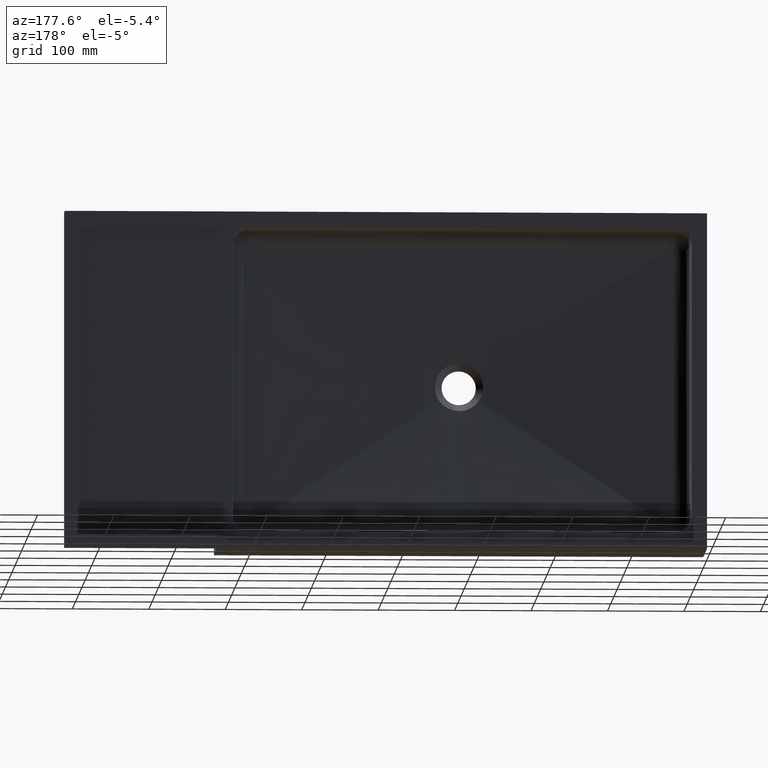
[diagram: clean part render]
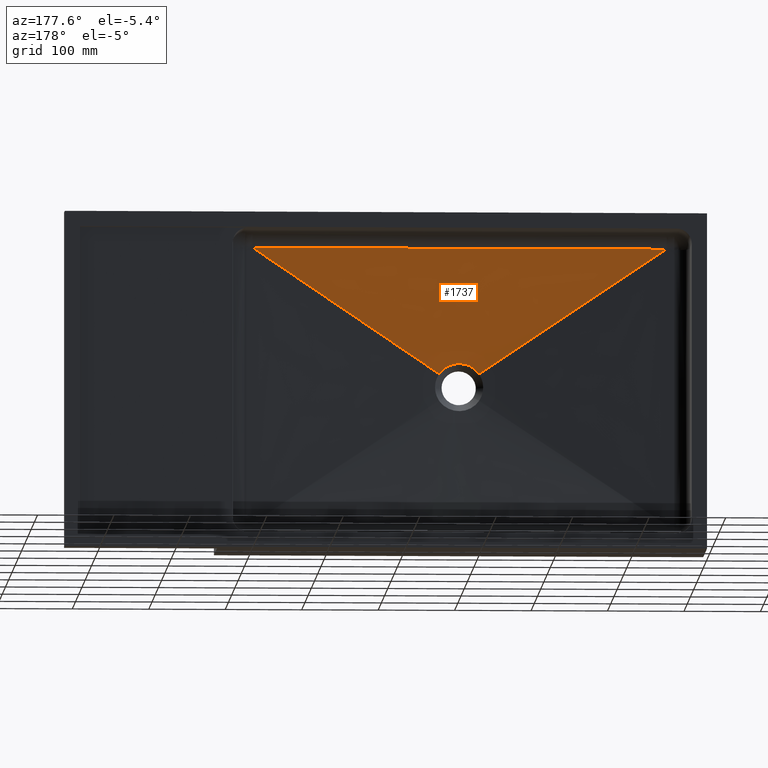
[diagram: same view with one face highlighted and labeled with its STEP entity id]
A machine part, auxiliary view. The second image highlights one B-rep face of the part: STEP entity #1737.
In plain terms, the highlighted face is a freeform B-spline surface patch.
Its self-contained STEP definition (entity closure, byte-faithful):
#9 = CARTESIAN_POINT ( 'NONE',  ( 298.4992200801833633, 17.43442117973044247, -197.0236428055716544 ) ) ;
#20 = CARTESIAN_POINT ( 'NONE',  ( 243.0804523647389317, 19.73031160035058207, -167.9859212480016311 ) ) ;
#46 = CARTESIAN_POINT ( 'NONE',  ( 386.7406578605121581, 19.25576967337587675, -174.8146416493360960 ) ) ;
#52 = CARTESIAN_POINT ( 'NONE',  ( 346.1628821202430686, 17.35106888223705113, -202.3324392136752294 ) ) ;
#62 = CARTESIAN_POINT ( 'NONE',  ( 341.1812567268683551, 17.43962421266724405, -196.7421294850480820 ) ) ;
#68 = EDGE_CURVE ( 'NONE', #1306, #1025, #1317, .T. ) ;
#74 = CARTESIAN_POINT ( 'NONE',  ( 337.5724397027032637, 17.49686281999438719, -193.9833549987497179 ) ) ;
#128 = CARTESIAN_POINT ( 'NONE',  ( 328.2705115068167743, 17.60572995430017329, -189.8475019211890924 ) ) ;
#133 = CARTESIAN_POINT ( 'NONE',  ( 310.3855416823307110, 17.00000000000000355, -199.5715957894001065 ) ) ;
#141 = CARTESIAN_POINT ( 'NONE',  ( 317.5417505736327826, 17.63655936837771065, -188.8579844265778434 ) ) ;
#146 = CARTESIAN_POINT ( 'NONE',  ( 419.9999999999981810, 30.00000000000002842, -19.99999999999999645 ) ) ;
#150 = CARTESIAN_POINT ( 'NONE',  ( 410.1919047427217038, 28.64220499485293203, -38.53912410753086704 ) ) ;
#154 = CARTESIAN_POINT ( 'NONE',  ( 310.2740926422634402, 17.59311487223626358, -190.2679442078787133 ) ) ;
#169 = CARTESIAN_POINT ( 'NONE',  ( 304.2164402549965416, 17.52263442354052714, -192.8998260806546057 ) ) ;
#186 = CARTESIAN_POINT ( 'NONE',  ( 298.8151061759666618, 17.43973092236823419, -196.7416928602682162 ) ) ;
#189 = CARTESIAN_POINT ( 'NONE',  ( 346.1628821202430686, 17.35106888223705113, -202.3324392136752294 ) ) ;
#196 = CARTESIAN_POINT ( 'NONE',  ( 273.5860375025707185, 18.30431805028412029, -188.5168692936494494 ) ) ;
#223 = CARTESIAN_POINT ( 'NONE',  ( 447.8493674986384576, 22.09791782938512483, -133.8965740121630859 ) ) ;
#240 = CARTESIAN_POINT ( 'NONE',  ( 341.2275791683691750, 17.43885310729609373, -196.7830291779662844 ) ) ;
#253 = CARTESIAN_POINT ( 'NONE',  ( 338.1765184064412324, 17.48766029636897912, -194.3967457715342277 ) ) ;
#279 = EDGE_CURVE ( 'NONE', #1550, #1306, #1668, .T. ) ;
#307 = CARTESIAN_POINT ( 'NONE',  ( 329.7960365135847951, 17.59255333545824840, -190.2886918923995268 ) ) ;
#312 = CARTESIAN_POINT ( 'NONE',  ( 119.9999999999988631, 30.00000000000002842, -19.99999999999999645 ) ) ;
#320 = CARTESIAN_POINT ( 'NONE',  ( 319.4126812507074078, 17.63931917629279766, -188.7730250779393373 ) ) ;
#324 = CARTESIAN_POINT ( 'NONE',  ( 324.0126367520733766, 17.00000000000000355, -197.7730765432633291 ) ) ;
#328 = CARTESIAN_POINT ( 'NONE',  ( 49.42430265475125850, 28.70802346306557240, -38.62780141314888738 ) ) ;
#332 = CARTESIAN_POINT ( 'NONE',  ( 311.7491006082124727, 17.60589153499722315, -189.8422546289549757 ) ) ;
#337 = CARTESIAN_POINT ( 'NONE',  ( 594.9999999999997726, 30.00000000000002842, -19.99999999999999645 ) ) ;
#347 = CARTESIAN_POINT ( 'NONE',  ( 305.0757049675291910, 17.53420099991326353, -192.4346879687319074 ) ) ;
#361 = CARTESIAN_POINT ( 'NONE',  ( 298.8514484992418829, 17.44034033597823807, -196.7095931555173820 ) ) ;
#376 = CARTESIAN_POINT ( 'NONE',  ( 293.8366417800776276, 17.35107103662104677, -202.3321082334448988 ) ) ;
#378 = CARTESIAN_POINT ( 'NONE',  ( 294.5048774089604535, 17.36368894936654428, -201.3707982517209985 ) ) ;
#399 = CARTESIAN_POINT ( 'NONE',  ( 590.5756973452614602, 28.70802346306557951, -38.62780141314889448 ) ) ;
#420 = CARTESIAN_POINT ( 'NONE',  ( 341.7043539530713474, 17.43087373361343495, -197.2128425563112160 ) ) ;
#431 = CARTESIAN_POINT ( 'NONE',  ( 338.5454762703533902, 17.48199838277591667, -194.6536490142010223 ) ) ;
#490 = CARTESIAN_POINT ( 'NONE',  ( 333.4690305332883327, 17.55352998320453395, -191.6795794902030536 ) ) ;
#494 = CARTESIAN_POINT ( 'NONE',  ( 303.1950448290143072, 17.00000000000000711, -204.9390881749260132 ) ) ;
#499 = CARTESIAN_POINT ( 'NONE',  ( 322.5042842882800187, 17.63692744571282844, -188.8439108284386521 ) ) ;
#503 = CARTESIAN_POINT ( 'NONE',  ( 294.9999999999979536, 30.00000000000002842, -20.00000000000000000 ) ) ;
#513 = CARTESIAN_POINT ( 'NONE',  ( 312.2634805580720467, 17.60990494882738489, -189.7105347511979687 ) ) ;
#518 = CARTESIAN_POINT ( 'NONE',  ( 336.8049551709857496, 17.00000000000000355, -204.9390881749261553 ) ) ;
#528 = CARTESIAN_POINT ( 'NONE',  ( 305.1566233238079349, 17.53527229010314770, -192.3925031638877954 ) ) ;
#541 = CARTESIAN_POINT ( 'NONE',  ( 299.4272172191255095, 17.45005420424027065, -196.2072747217575284 ) ) ;
#557 = CARTESIAN_POINT ( 'NONE',  ( 296.9785929457072484, 17.40834144577381437, -198.4907390524111577 ) ) ;
#569 = CARTESIAN_POINT ( 'NONE',  ( 90.21079155206686551, 26.82084772489019997, -65.83618633967181211 ) ) ;
#590 = CARTESIAN_POINT ( 'NONE',  ( 351.2060134618366192, 17.58892200490538116, -198.8496658035410292 ) ) ;
#599 = CARTESIAN_POINT ( 'NONE',  ( 343.0251397311349706, 17.40832457262390065, -198.4935776823593017 ) ) ;
#611 = ORIENTED_EDGE ( 'NONE', *, *, #1531, .T. ) ;
#612 = CARTESIAN_POINT ( 'NONE',  ( 339.4408809861074019, 17.46797335024123043, -195.3116481925630694 ) ) ;
#674 = CARTESIAN_POINT ( 'NONE',  ( 335.3484957803705697, 17.52839124529015180, -192.6627759635372570 ) ) ;
#681 = CARTESIAN_POINT ( 'NONE',  ( 20.00000000000000000, 30.00000000000002842, -20.00000000000000000 ) ) ;
#685 = CARTESIAN_POINT ( 'NONE',  ( 327.6853305047642380, 17.61027730249548284, -189.6980556416626484 ) ) ;
#691 = CARTESIAN_POINT ( 'NONE',  ( 315.9873632479264529, 17.00000000000000711, -197.7730765432633291 ) ) ;
#699 = CARTESIAN_POINT ( 'NONE',  ( 312.3626031837769119, 17.61064706259421087, -189.6862258149710385 ) ) ;
#703 = CARTESIAN_POINT ( 'NONE',  ( 494.9999999999986358, 30.00000000000002842, -19.99999999999999645 ) ) ;
#712 = CARTESIAN_POINT ( 'NONE',  ( 305.2348297586451622, 17.53630440595754081, -192.3519317147288916 ) ) ;
#727 = CARTESIAN_POINT ( 'NONE',  ( 301.6170029484686097, 17.48520742995743404, -194.5202162899076086 ) ) ;
#743 = CARTESIAN_POINT ( 'NONE',  ( 298.3090864260740886, 17.43120263727905694, -197.1981524125839940 ) ) ;
#756 = CARTESIAN_POINT ( 'NONE',  ( 212.5325562977805873, 21.15217855827389570, -147.5173864424576777 ) ) ;
#778 = CARTESIAN_POINT ( 'NONE',  ( 371.4928072007004971, 18.54237968721177410, -185.0876904931058675 ) ) ;
#784 = CARTESIAN_POINT ( 'NONE',  ( 345.4944190650212477, 17.36383403964455141, -201.3655442441639138 ) ) ;
#794 = CARTESIAN_POINT ( 'NONE',  ( 341.1485900577223447, 17.44016772450472175, -196.7133444727561766 ) ) ;
#845 = B_SPLINE_SURFACE_WITH_KNOTS ( 'NONE', 3, 1, ( 
 ( #2351, #681 ),
 ( #1420, #2168 ),
 ( #494, #1237 ),
 ( #1982, #312 ),
 ( #1058, #1798 ),
 ( #133, #872 ),
 ( #1611, #2360 ),
 ( #691, #1428 ),
 ( #2177, #503 ),
 ( #1248, #1997 ),
 ( #324, #1073 ),
 ( #1812, #146 ),
 ( #886, #1627 ),
 ( #2372, #703 ),
 ( #1439, #2191 ),
 ( #518, #1262 ),
 ( #2010, #337 ),
 ( #1085, #1826 ) ),
 .UNSPECIFIED., .F., .F., .F.,
 ( 4, 2, 2, 2, 2, 2, 2, 2, 4 ),
 ( 2, 2 ),
 ( 0.0000000000000000000, 0.1250000000000000000, 0.2500000000000000000, 0.3750000000000000000, 0.5000000000000000000, 0.6250000000000000000, 0.7500000000000000000, 0.8750000000000000000, 1.000000000000000000 ),
 ( 0.0000000000000000000, 1.000000000000000000 ),
 .UNSPECIFIED. ) ;
#856 = CARTESIAN_POINT ( 'NONE',  ( 337.0132265288191320, 17.50506987517801250, -193.6265270039860127 ) ) ;
#859 = ORIENTED_EDGE ( 'NONE', *, *, #68, .T. ) ;
#865 = CARTESIAN_POINT ( 'NONE',  ( 328.0705634768749519, 17.60732800590989555, -189.7948102333907343 ) ) ;
#872 = CARTESIAN_POINT ( 'NONE',  ( 194.9999999999983231, 30.00000000000002842, -19.99999999999999645 ) ) ;
#880 = CARTESIAN_POINT ( 'NONE',  ( 316.9060788256996375, 17.63477997875263270, -188.9130071431498550 ) ) ;
#886 = CARTESIAN_POINT ( 'NONE',  ( 329.6144583176694027, 17.00000000000000355, -199.5715957894001917 ) ) ;
#890 = CARTESIAN_POINT ( 'NONE',  ( 500.3838035198353396, 28.67547132688467926, -38.58663660197292700 ) ) ;
#894 = CARTESIAN_POINT ( 'NONE',  ( 309.6964192929534079, 17.58758577232083198, -190.4563172350177354 ) ) ;
#907 = CARTESIAN_POINT ( 'NONE',  ( 303.6200339372962844, 17.51441155320422638, -193.2399888466946720 ) ) ;
#929 = CARTESIAN_POINT ( 'NONE',  ( 298.7906420240741454, 17.43932058403506957, -196.7633409360796009 ) ) ;
#939 = CARTESIAN_POINT ( 'NONE',  ( 268.5068921206884625, 18.54239376971089470, -185.0874876412278240 ) ) ;
#965 = CARTESIAN_POINT ( 'NONE',  ( 427.4673317084864834, 21.15217335983956204, -147.5174612991412744 ) ) ;
#983 = CARTESIAN_POINT ( 'NONE',  ( 341.2033765128934419, 17.43925607611877382, -196.7616431613483883 ) ) ;
#993 = CARTESIAN_POINT ( 'NONE',  ( 338.1559765889446680, 17.48797412072686441, -194.3826102816195771 ) ) ;
#1025 = VERTEX_POINT ( 'NONE', #2106 ) ;
#1052 = CARTESIAN_POINT ( 'NONE',  ( 328.9510916330667669, 17.60006675243864294, -190.0355207479985040 ) ) ;
#1058 = CARTESIAN_POINT ( 'NONE',  ( 307.1404498617774834, 17.00000000000000355, -201.4422663674576199 ) ) ;
#1066 = CARTESIAN_POINT ( 'NONE',  ( 318.7943530223839161, 17.63875313300190584, -188.7904653208967432 ) ) ;
#1072 = B_SPLINE_CURVE_WITH_KNOTS ( 'NONE', 3,
 ( #399, #1146, #1889, #223, #965, #1701, #46, #778, #1516, #2266, #590, #1333 ),
 .UNSPECIFIED., .F., .F.,
 ( 4, 2, 2, 2, 2, 4 ),
 ( 0.0000000000000000000, 0.1471957615377550432, 0.2207936423066324816, 0.2575925826910712146, 0.2759920528832904840, 0.2943915230755098089 ),
 .UNSPECIFIED. ) ;
#1073 = CARTESIAN_POINT ( 'NONE',  ( 369.9999999999979536, 30.00000000000002842, -19.99999999999999645 ) ) ;
#1077 = CARTESIAN_POINT ( 'NONE',  ( 139.6161958505560676, 28.67547132711193214, -38.58663660226029180 ) ) ;
#1081 = CARTESIAN_POINT ( 'NONE',  ( 311.3618477441705181, 17.60271605486323310, -189.9469864691287455 ) ) ;
#1085 = CARTESIAN_POINT ( 'NONE',  ( 338.7211316226014901, 17.00000000000000000, -207.5192455849323778 ) ) ;
#1093 = CARTESIAN_POINT ( 'NONE',  ( 304.9027563507167429, 17.53190358688532058, -192.5255504226080632 ) ) ;
#1110 = CARTESIAN_POINT ( 'NONE',  ( 298.8330823401223597, 17.44003232951449078, -196.7258103250474619 ) ) ;
#1123 = CARTESIAN_POINT ( 'NONE',  ( 288.7935093318767485, 17.58894452315654178, -198.8493380189285347 ) ) ;
#1125 = CARTESIAN_POINT ( 'NONE',  ( 293.8366417800776276, 17.35107103662104677, -202.3321082334448988 ) ) ;
#1146 = CARTESIAN_POINT ( 'NONE',  ( 549.7891759330418608, 26.82084622043822719, -65.83620803013130285 ) ) ;
#1162 = B_SPLINE_CURVE_WITH_KNOTS ( 'NONE', 3,
 ( #52, #784, #1522, #2273, #599, #1341, #2090, #420, #1164, #1907, #240, #983, #1717, #62, #794, #1534, #2285, #612, #1355, #2100, #431, #1174, #1917, #253, #993, #1727, #74, #856, #1597, #2344, #674, #1413, #2160, #490, #1232, #1978, #307, #1052, #1792, #128, #865, #1607, #2355, #685, #1424, #2173, #499, #1243, #1992, #320, #1066, #1806, #141, #880, #1620, #2368, #699, #1436, #2187, #513, #1257, #2007, #332, #1081, #1820, #154, #894, #1636, #2382, #712, #1449, #2201, #528, #1270, #2018, #347, #1093, #1835, #169, #907, #1649, #2398, #727, #1462, #2214, #541, #1284, #2031, #361, #1110, #1850, #186, #929, #1665, #9, #743, #1479, #2233, #557, #1299, #2048, #378, #1125 ),
 .UNSPECIFIED., .F., .F.,
 ( 4, 2, 2, 2, 1, 1, 2, 2, 1, 1, 2, 2, 1, 1, 2, 2, 1, 2, 1, 2, 2, 2, 2, 2, 1, 2, 2, 2, 2, 2, 2, 2, 2, 2, 1, 1, 1, 2, 2, 2, 2, 1, 2, 2, 1, 1, 1, 2, 2, 2, 2, 2, 1, 2, 2, 1, 1, 2, 2, 2, 4 ),
 ( 0.003313198038739195717, 0.06539815889813943572, 0.09644063932783904225, 0.1119618795426893104, 0.1197224996501135147, 0.1236028097038242568, 0.1245728872172524038, 0.1250579259739664773, 0.1255429647306805507, 0.1274831197575368724, 0.1585256001872708265, 0.1740468404021388582, 0.1818074605095728602, 0.1856877705632898889, 0.1866578480767189796, 0.1876279255901480703, 0.1895680806170062238, 0.2206105610467452016, 0.2361318012616143436, 0.2438924213690500387, 0.2516530414764858170, 0.3137380023359758185, 0.3447804827657208193, 0.3603017229805919319, 0.3680623430880276548, 0.3719426531417455162, 0.3758229631954633776, 0.4379079240549580976, 0.4999928849144528731, 0.5155141251293258176, 0.5310353653441988175, 0.5620778457739448175, 0.6241628066334340419, 0.6251328841468647424, 0.6261029616602954428, 0.6280431166871528470, 0.6319234267408642136, 0.6396840468482896114, 0.6552052870631405179, 0.6862477674928419979, 0.7483327283522479556, 0.7493028058656766577, 0.7497878446223910087, 0.7500303640007482953, 0.7502728833791054708, 0.7522130384059608765, 0.7560933484596715770, 0.7638539685670926449, 0.7793752087819355578, 0.8104176892116208286, 0.8414601696413059884, 0.8725026500709912591, 0.8744428050978446665, 0.8749278438545584624, 0.8754128826112721473, 0.8763829601247020706, 0.8802632701784224301, 0.8880238902858619277, 0.9035451305007400347, 0.9345876109304964707, 0.9966725717900094539 ),
 .UNSPECIFIED. ) ;
#1164 = CARTESIAN_POINT ( 'NONE',  ( 341.5159899792458873, 17.43403968955095351, -197.0402528464722423 ) ) ;
#1174 = CARTESIAN_POINT ( 'NONE',  ( 338.3068788580472983, 17.48566571392469626, -194.4868193314028701 ) ) ;
#1232 = CARTESIAN_POINT ( 'NONE',  ( 332.1918796027328540, 17.56833170415552914, -191.1367729698563096 ) ) ;
#1237 = CARTESIAN_POINT ( 'NONE',  ( 69.99999999999937472, 30.00000000000002842, -19.99999999999999645 ) ) ;
#1243 = CARTESIAN_POINT ( 'NONE',  ( 321.2459750129302165, 17.63934853286158955, -188.7709410867926181 ) ) ;
#1248 = CARTESIAN_POINT ( 'NONE',  ( 322.0069390943298799, 17.00000000000000355, -197.5000000000000853 ) ) ;
#1257 = CARTESIAN_POINT ( 'NONE',  ( 312.1564818008433804, 17.60909386136256316, -189.7371114848323259 ) ) ;
#1262 = CARTESIAN_POINT ( 'NONE',  ( 569.9999999999994316, 30.00000000000002842, -19.99999999999999645 ) ) ;
#1270 = CARTESIAN_POINT ( 'NONE',  ( 305.1525134847823324, 17.53521792322055006, -192.3946423315851746 ) ) ;
#1284 = CARTESIAN_POINT ( 'NONE',  ( 299.1282957685551196, 17.44499015008265630, -196.4658743026573404 ) ) ;
#1299 = CARTESIAN_POINT ( 'NONE',  ( 296.5300192107370663, 17.40044308418494268, -198.9669990272986695 ) ) ;
#1306 = VERTEX_POINT ( 'NONE', #1876 ) ;
#1312 = CARTESIAN_POINT ( 'NONE',  ( 49.42430265475125850, 28.70802346306557240, -38.62780141314888738 ) ) ;
#1317 = B_SPLINE_CURVE_WITH_KNOTS ( 'NONE', 3,
 ( #328, #1077, #1816, #150, #890, #1631 ),
 .UNSPECIFIED., .F., .F.,
 ( 4, 2, 4 ),
 ( 0.001481527144366818474, 0.2720572525340452796, 0.5426329779237237805 ),
 .UNSPECIFIED. ) ;
#1333 = CARTESIAN_POINT ( 'NONE',  ( 346.1628821202430686, 17.35106888223705113, -202.3324392136752294 ) ) ;
#1341 = CARTESIAN_POINT ( 'NONE',  ( 342.3182188792113152, 17.42047466620556051, -197.7918154419102734 ) ) ;
#1355 = CARTESIAN_POINT ( 'NONE',  ( 339.1753409265464825, 17.47217772838918748, -195.1109239097023078 ) ) ;
#1406 = VERTEX_POINT ( 'NONE', #189 ) ;
#1413 = CARTESIAN_POINT ( 'NONE',  ( 335.0606796310065647, 17.53229643482402267, -192.5077464286794964 ) ) ;
#1420 = CARTESIAN_POINT ( 'NONE',  ( 302.1442529927830947, 16.99999999999999645, -206.2211686618554438 ) ) ;
#1424 = CARTESIAN_POINT ( 'NONE',  ( 326.3332600286124148, 17.62030656246452054, -189.3699269002455310 ) ) ;
#1428 = CARTESIAN_POINT ( 'NONE',  ( 269.9999999999980105, 30.00000000000002842, -19.99999999999999645 ) ) ;
#1436 = CARTESIAN_POINT ( 'NONE',  ( 312.3393350353736651, 17.61047354645557306, -189.6919086554467810 ) ) ;
#1439 = CARTESIAN_POINT ( 'NONE',  ( 334.3073734092367317, 17.00000000000000355, -202.5490215337318034 ) ) ;
#1449 = CARTESIAN_POINT ( 'NONE',  ( 305.2035576469024249, 17.53589250819469214, -192.3681085284353856 ) ) ;
#1462 = CARTESIAN_POINT ( 'NONE',  ( 300.5907046753411009, 17.46917954868476031, -195.2686807993972025 ) ) ;
#1479 = CARTESIAN_POINT ( 'NONE',  ( 297.9337488625760670, 17.42482258723307353, -197.5482272452417192 ) ) ;
#1493 = CARTESIAN_POINT ( 'NONE',  ( 192.1505183121994946, 22.09792312677647175, -133.8964977048464675 ) ) ;
#1516 = CARTESIAN_POINT ( 'NONE',  ( 366.4135934830029555, 18.30430074071445645, -188.5171187357167923 ) ) ;
#1522 = CARTESIAN_POINT ( 'NONE',  ( 344.7416514686005939, 17.37784224903487384, -200.3974006542143513 ) ) ;
#1531 = EDGE_CURVE ( 'NONE', #1406, #1550, #1162, .T. ) ;
#1534 = CARTESIAN_POINT ( 'NONE',  ( 340.6945430474052614, 17.44771449635381089, -196.3148753960906276 ) ) ;
#1550 = VERTEX_POINT ( 'NONE', #1678 ) ;
#1597 = CARTESIAN_POINT ( 'NONE',  ( 336.1937954809964708, 17.51670796112711415, -193.1378796085137424 ) ) ;
#1603 = FACE_OUTER_BOUND ( 'NONE', #1771, .T. ) ;
#1607 = CARTESIAN_POINT ( 'NONE',  ( 327.8742882973760970, 17.60884196672899904, -189.7451064066898425 ) ) ;
#1611 = CARTESIAN_POINT ( 'NONE',  ( 312.1827727627423883, 17.00000000000000355, -198.8097112247897655 ) ) ;
#1620 = CARTESIAN_POINT ( 'NONE',  ( 314.9831658474860774, 17.62762179037612498, -189.1374355085471279 ) ) ;
#1627 = CARTESIAN_POINT ( 'NONE',  ( 444.9999999999983515, 30.00000000000002842, -19.99999999999999645 ) ) ;
#1631 = CARTESIAN_POINT ( 'NONE',  ( 590.5756973452614602, 28.70802346306557951, -38.62780141314889448 ) ) ;
#1636 = CARTESIAN_POINT ( 'NONE',  ( 307.8911119882148455, 17.56905578296940362, -191.1063680388201078 ) ) ;
#1649 = CARTESIAN_POINT ( 'NONE',  ( 303.2493189066513537, 17.50917546351992371, -193.4624355373878473 ) ) ;
#1665 = CARTESIAN_POINT ( 'NONE',  ( 298.7092243061065346, 17.43795427487392402, -196.8355330763976099 ) ) ;
#1668 = B_SPLINE_CURVE_WITH_KNOTS ( 'NONE', 3,
 ( #376, #1123, #1865, #196, #939, #1676, #20, #756, #1493, #2243, #569, #1312 ),
 .UNSPECIFIED., .F., .F.,
 ( 4, 2, 2, 2, 2, 4 ),
 ( 0.0000000000000000000, 0.01839933380535700366, 0.03679866761071400733, 0.07359733522142811180, 0.1471946704428563624, 0.2943893408857128358 ),
 .UNSPECIFIED. ) ;
#1676 = CARTESIAN_POINT ( 'NONE',  ( 253.2591702272717953, 19.25577768676553347, -174.8145263724923666 ) ) ;
#1678 = CARTESIAN_POINT ( 'NONE',  ( 293.8366417800776276, 17.35107103662104677, -202.3321082334448988 ) ) ;
#1701 = CARTESIAN_POINT ( 'NONE',  ( 396.9194033958269188, 19.73030487946981637, -167.9860179874504240 ) ) ;
#1717 = CARTESIAN_POINT ( 'NONE',  ( 341.1943046366143903, 17.43940707638727616, -196.7536362724414118 ) ) ;
#1727 = CARTESIAN_POINT ( 'NONE',  ( 338.1087719059211167, 17.48869464065550261, -194.3501906649052273 ) ) ;
#1737 = ADVANCED_FACE ( 'NONE', ( #1603 ), #845, .F. ) ;
#1771 = EDGE_LOOP ( 'NONE', ( #859, #1882, #611, #2403 ) ) ;
#1780 = EDGE_CURVE ( 'NONE', #1025, #1406, #1072, .T. ) ;
#1792 = CARTESIAN_POINT ( 'NONE',  ( 328.6751005633730642, 17.60242173002657395, -189.9570107236676222 ) ) ;
#1798 = CARTESIAN_POINT ( 'NONE',  ( 144.9999999999986642, 30.00000000000002842, -19.99999999999999645 ) ) ;
#1806 = CARTESIAN_POINT ( 'NONE',  ( 318.4827608668623498, 17.63831844306469065, -188.8038011162545331 ) ) ;
#1812 = CARTESIAN_POINT ( 'NONE',  ( 327.8172272372575549, 17.00000000000000355, -198.8097112247898224 ) ) ;
#1816 = CARTESIAN_POINT ( 'NONE',  ( 229.8080945377728312, 28.64220499501309547, -38.53912410776049313 ) ) ;
#1820 = CARTESIAN_POINT ( 'NONE',  ( 311.0955326425670933, 17.60043717730680513, -190.0225684281863323 ) ) ;
#1826 = CARTESIAN_POINT ( 'NONE',  ( 620.0000000000000000, 30.00000000000002842, -20.00000000000000000 ) ) ;
#1835 = CARTESIAN_POINT ( 'NONE',  ( 304.5247220004620772, 17.52683804266113654, -192.7281200013830755 ) ) ;
#1850 = CARTESIAN_POINT ( 'NONE',  ( 298.8257630170177777, 17.43990960705373894, -196.7322753161293178 ) ) ;
#1865 = CARTESIAN_POINT ( 'NONE',  ( 283.7288215616194975, 17.82767143670031018, -195.3985772008973356 ) ) ;
#1876 = CARTESIAN_POINT ( 'NONE',  ( 49.42430265475125850, 28.70802346306557240, -38.62780141314888738 ) ) ;
#1882 = ORIENTED_EDGE ( 'NONE', *, *, #1780, .T. ) ;
#1889 = CARTESIAN_POINT ( 'NONE',  ( 509.0041481856767405, 24.93326465165818817, -93.04683106946349369 ) ) ;
#1907 = CARTESIAN_POINT ( 'NONE',  ( 341.3081329212905075, 17.43751121572612917, -196.8543517716245503 ) ) ;
#1917 = CARTESIAN_POINT ( 'NONE',  ( 338.2138373353691918, 17.48708964865625504, -194.4224902093535263 ) ) ;
#1978 = CARTESIAN_POINT ( 'NONE',  ( 330.3820128926077473, 17.58694641184917273, -190.4809530020731358 ) ) ;
#1982 = CARTESIAN_POINT ( 'NONE',  ( 305.6926265907633251, 17.00000000000000355, -202.5490215337316329 ) ) ;
#1992 = CARTESIAN_POINT ( 'NONE',  ( 319.7177515070931690, 17.63945063498442067, -188.7689185224088533 ) ) ;
#1997 = CARTESIAN_POINT ( 'NONE',  ( 344.9999999999978968, 30.00000000000002842, -19.99999999999999645 ) ) ;
#2007 = CARTESIAN_POINT ( 'NONE',  ( 311.9396750335813522, 17.60741856601403299, -189.7920485815224652 ) ) ;
#2010 = CARTESIAN_POINT ( 'NONE',  ( 337.8557470072169053, 17.00000000000000355, -206.2211686618555291 ) ) ;
#2018 = CARTESIAN_POINT ( 'NONE',  ( 305.1385367646966529, 17.53503292986643913, -192.4019244160135429 ) ) ;
#2031 = CARTESIAN_POINT ( 'NONE',  ( 298.8701547260813527, 17.44065434400140191, -196.6931028026841659 ) ) ;
#2048 = CARTESIAN_POINT ( 'NONE',  ( 295.2568635178737964, 17.37766055712697622, -200.4032624208740287 ) ) ;
#2090 = CARTESIAN_POINT ( 'NONE',  ( 342.0764156363427446, 17.42459319475524637, -197.5592443454968645 ) ) ;
#2100 = CARTESIAN_POINT ( 'NONE',  ( 338.7585172065493566, 17.47869046907045387, -194.8066107044878663 ) ) ;
#2106 = CARTESIAN_POINT ( 'NONE',  ( 590.5756973452614602, 28.70802346306557951, -38.62780141314889448 ) ) ;
#2160 = CARTESIAN_POINT ( 'NONE',  ( 334.9208041128432001, 17.53418714183503724, -192.4334821941090468 ) ) ;
#2168 = CARTESIAN_POINT ( 'NONE',  ( 44.99999999999966604, 30.00000000000002842, -19.99999999999999645 ) ) ;
#2173 = CARTESIAN_POINT ( 'NONE',  ( 325.0479128749731785, 17.62740646051429039, -189.1434028004904349 ) ) ;
#2177 = CARTESIAN_POINT ( 'NONE',  ( 317.9930609056699495, 17.00000000000000000, -197.5000000000000568 ) ) ;
#2187 = CARTESIAN_POINT ( 'NONE',  ( 312.3090338413462064, 17.61024686626741698, -189.6993339812900672 ) ) ;
#2191 = CARTESIAN_POINT ( 'NONE',  ( 519.9999999999988631, 30.00000000000002842, -19.99999999999999645 ) ) ;
#2201 = CARTESIAN_POINT ( 'NONE',  ( 305.1722698072225626, 17.53547918756347812, -192.3843629800587962 ) ) ;
#2214 = CARTESIAN_POINT ( 'NONE',  ( 300.1584119488522333, 17.46214890354131910, -195.6087051519632212 ) ) ;
#2233 = CARTESIAN_POINT ( 'NONE',  ( 297.6901128095915965, 17.42064526701146221, -197.7830247072294583 ) ) ;
#2243 = CARTESIAN_POINT ( 'NONE',  ( 130.9957871248144841, 24.93326764451230559, -93.04678792269447740 ) ) ;
#2266 = CARTESIAN_POINT ( 'NONE',  ( 356.2707482456688695, 17.82765118859362730, -195.3988700074660585 ) ) ;
#2273 = CARTESIAN_POINT ( 'NONE',  ( 343.4718417752613391, 17.40049849965927109, -198.9668437964469945 ) ) ;
#2285 = CARTESIAN_POINT ( 'NONE',  ( 340.2031765156895631, 17.45577256271604583, -195.9056863050003869 ) ) ;
#2344 = CARTESIAN_POINT ( 'NONE',  ( 335.7766157682125936, 17.52253991787708287, -192.8973497060195257 ) ) ;
#2351 = CARTESIAN_POINT ( 'NONE',  ( 301.2788683773985099, 17.00000000000000000, -207.5192455849323778 ) ) ;
#2355 = CARTESIAN_POINT ( 'NONE',  ( 327.7442703905121562, 17.60983258709937971, -189.7126229733449634 ) ) ;
#2360 = CARTESIAN_POINT ( 'NONE',  ( 219.9999999999982094, 30.00000000000002842, -19.99999999999999645 ) ) ;
#2368 = CARTESIAN_POINT ( 'NONE',  ( 313.6796800051250216, 17.62042297212344266, -189.3661924569058783 ) ) ;
#2372 = CARTESIAN_POINT ( 'NONE',  ( 332.8595501382225734, 17.00000000000000355, -201.4422663674575631 ) ) ;
#2382 = CARTESIAN_POINT ( 'NONE',  ( 306.5894803301717957, 17.55411220392823068, -191.6531729389720908 ) ) ;
#2398 = CARTESIAN_POINT ( 'NONE',  ( 302.2110333805844675, 17.49420466608668434, -194.1117068820733209 ) ) ;
#2403 = ORIENTED_EDGE ( 'NONE', *, *, #279, .T. ) ;